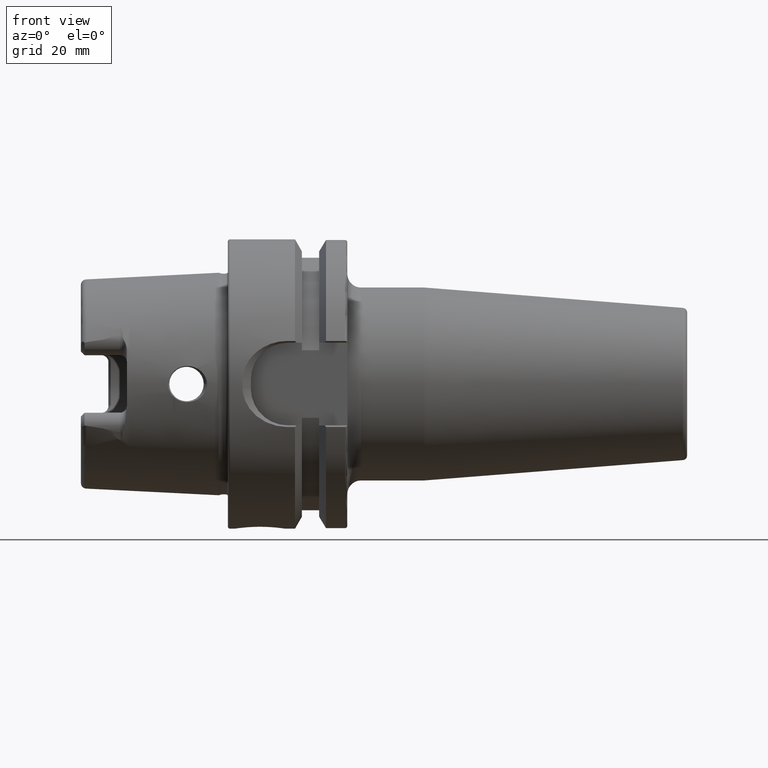
[diagram: clean part render]
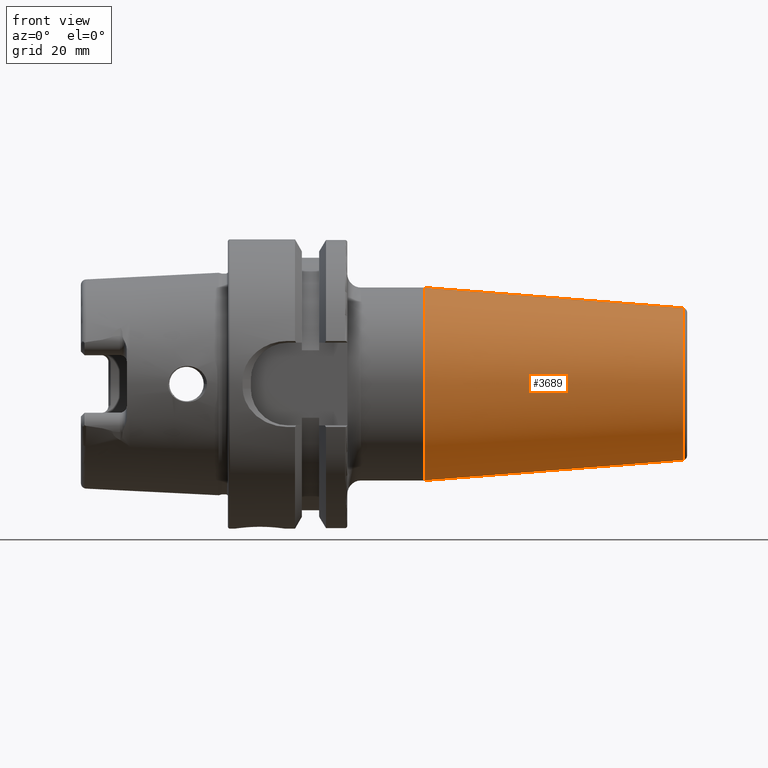
[diagram: same view with one face highlighted and labeled with its STEP entity id]
A machine part, front view. The second image highlights one B-rep face of the part: STEP entity #3689.
In plain terms, the highlighted conical surface has half-angle 4.5 deg.
Its self-contained STEP definition (entity closure, byte-faithful):
#586=DIRECTION('',(-9.969173337331E-1,0.E0,-7.845909572788E-2));
#587=VECTOR('',#586,5.643033630266E1);
#588=CARTESIAN_POINT('',(9.907845909573E1,0.E0,-1.657252684207E1));
#589=LINE('',#588,#587);
#590=DIRECTION('',(-9.969173337331E-1,0.E0,7.845909572788E-2));
#591=VECTOR('',#590,5.643033630266E1);
#592=CARTESIAN_POINT('',(9.907845909573E1,0.E0,1.657252684207E1));
#593=LINE('',#592,#591);
#594=CARTESIAN_POINT('',(9.907845909573E1,0.E0,0.E0));
#595=DIRECTION('',(-1.E0,0.E0,0.E0));
#596=DIRECTION('',(0.E0,0.E0,-1.E0));
#597=AXIS2_PLACEMENT_3D('',#594,#595,#596);
#607=CARTESIAN_POINT('',(4.282207868721E1,0.E0,0.E0));
#608=DIRECTION('',(-1.E0,0.E0,0.E0));
#609=DIRECTION('',(0.E0,0.E0,-1.E0));
#610=AXIS2_PLACEMENT_3D('',#607,#608,#609);
#2955=CARTESIAN_POINT('',(9.907845909573E1,0.E0,-1.657252684207E1));
#2957=VERTEX_POINT('',#2955);
#2958=CARTESIAN_POINT('',(4.282207868721E1,0.E0,-2.1E1));
#2959=VERTEX_POINT('',#2958);
#2977=CARTESIAN_POINT('',(9.907845909573E1,0.E0,1.657252684207E1));
#2979=VERTEX_POINT('',#2977);
#2980=CARTESIAN_POINT('',(4.282207868721E1,0.E0,2.1E1));
#2981=VERTEX_POINT('',#2980);
#3677=CARTESIAN_POINT('',(7.095026889147E1,0.E0,0.E0));
#3678=DIRECTION('',(-1.E0,0.E0,0.E0));
#3679=DIRECTION('',(0.E0,0.E0,-1.E0));
#3680=AXIS2_PLACEMENT_3D('',#3677,#3678,#3679);
#3681=CONICAL_SURFACE('',#3680,1.878626342104E1,4.500000000002E0);
#3682=ORIENTED_EDGE('',*,*,#3667,.T.);
#3684=ORIENTED_EDGE('',*,*,#3683,.T.);
#3685=ORIENTED_EDGE('',*,*,#3670,.F.);
#3686=ORIENTED_EDGE('',*,*,#3641,.F.);
#3687=EDGE_LOOP('',(#3682,#3684,#3685,#3686));
#3688=FACE_OUTER_BOUND('',#3687,.F.);
#3689=ADVANCED_FACE('',(#3688),#3681,.T.);
#598=CIRCLE('',#597,1.657252684207E1);
#611=CIRCLE('',#610,2.1E1);
#3641=EDGE_CURVE('',#2957,#2979,#598,.T.);
#3667=EDGE_CURVE('',#2957,#2959,#589,.T.);
#3670=EDGE_CURVE('',#2979,#2981,#593,.T.);
#3683=EDGE_CURVE('',#2959,#2981,#611,.T.);